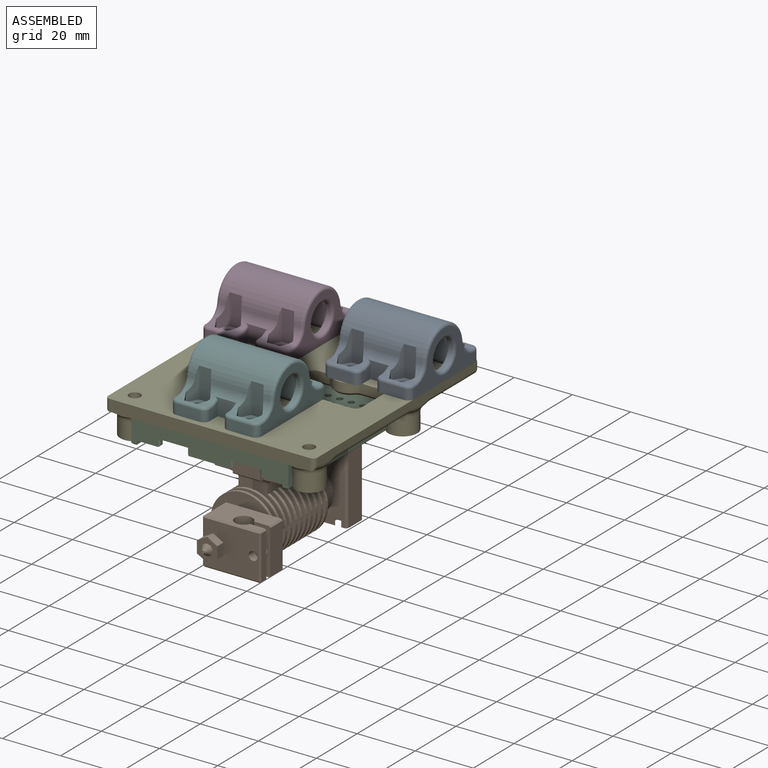
[diagram: assembled view]
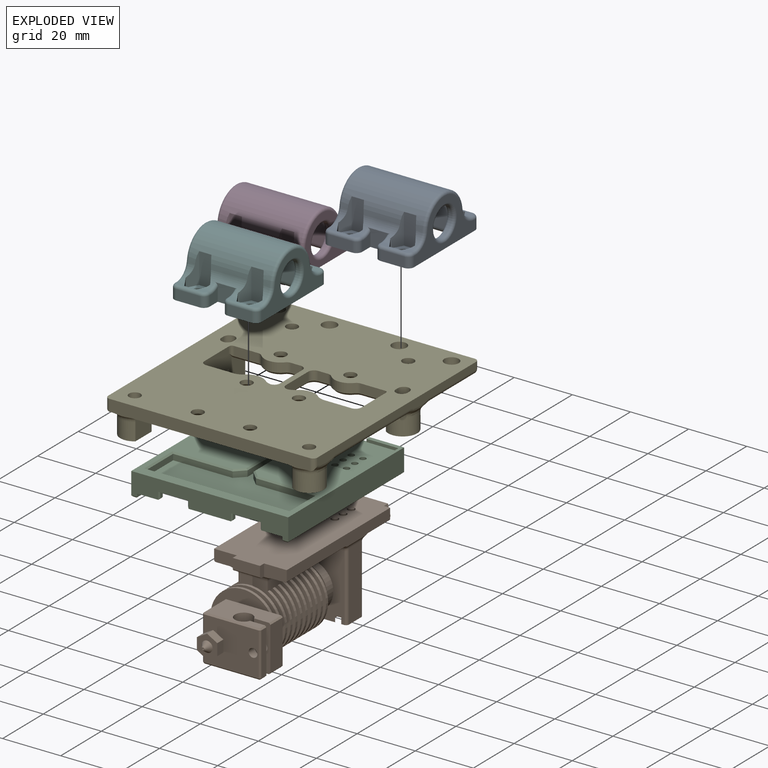
[diagram: exploded view]
GUIDED TOUR — MATED ASSEMBLY WITH SUBASSEMBLIES (Onshape document 94b377ac332a433ed45a9420, AutoMate assembly 94b377ac332a433ed45a9420_afbccce69446bfe2c3d41b74_d0dcf9f462255d9957f37b90_default)

This assembly has 19 component occurrences arranged in 6 top-level units: 5 individual components plus 1 subassembly (S0). The tour has two levels: first the top level, where each subassembly is treated as one rigid unit; then each subassembly is toured internally in its own section (nesting deeper than one subassembly level is flattened into its subassembly's section).

Components are labeled P0..P18 across the whole record; subassembly units are labeled S0..S0. A mate is a constraint between two units; its type names the relative motion it leaves free:
  FASTENED — locks the two components together rigidly (no relative motion),
  REVOLUTE — leaves rotation about the listed axis free (a hinge),
  SLIDER — leaves translation along the listed axis free.
Axis/direction vectors are unit vectors and 'through' points are millimeter coordinates, both in the assembly's world frame.

TOP-LEVEL MATES (between units; each subassembly's internal mates are listed in its own section)
  1. FASTENED "Fastened 1": P14 <-> P15, direction (0.000, 0.000, 1.000) through (84.69, -9.59, 2.87) mm
  2. FASTENED "Fastened 3": P9 <-> P14, direction (0.000, 0.000, -1.000) through (63.69, 35.41, 2.87) mm
  3. FASTENED "Fastened 2": P0 <-> P14, direction (0.000, 0.000, -1.000) through (105.69, 35.41, 2.87) mm
  4. FASTENED "Fastened 4": P7 <-> P14, direction (0.000, 1.000, 0.000) through (48.69, 16.41, -1.13) mm

TOP-LEVEL ASSEMBLY ORDER
  1. P14 — the base component [order verified]
  2. P7 [order verified]
  3. S0 [order verified]
  4. P15 [order verified]
  5. P9 [order verified]
  6. P0 [order verified]
(S0 verified with a relaxed clearance tolerance: the source model stores slight part interference there.)
Order-tag legend:
  [order verified] — this step's position reverses a verified removal order: the component was checked to insert without passing through the ones already placed.

Of the 19 component occurrences, 9 carry the full construction recipe — the FeatureScript program that regenerates the part's solid from scratch; the rest are supplied as boundary geometry only. Each toured unit is shown spotlighted twice — assembled, then exploded with a leader line back to its socket (green = recipe-attached component, orange = geometry-only, blue = subassembly unit; the rest desaturated gray).
NOTE — this tour is split across 2 documents so each fits a 32k-token context. This is document 1: the component sections continue in the remaining 1 document, each repeating the header above.
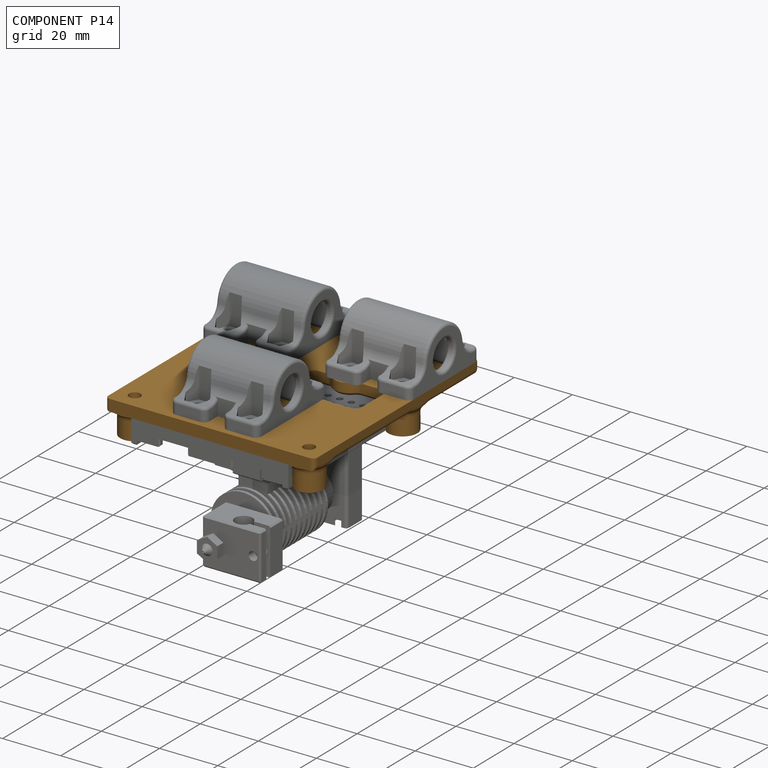
[diagram: component P14 — assembled]
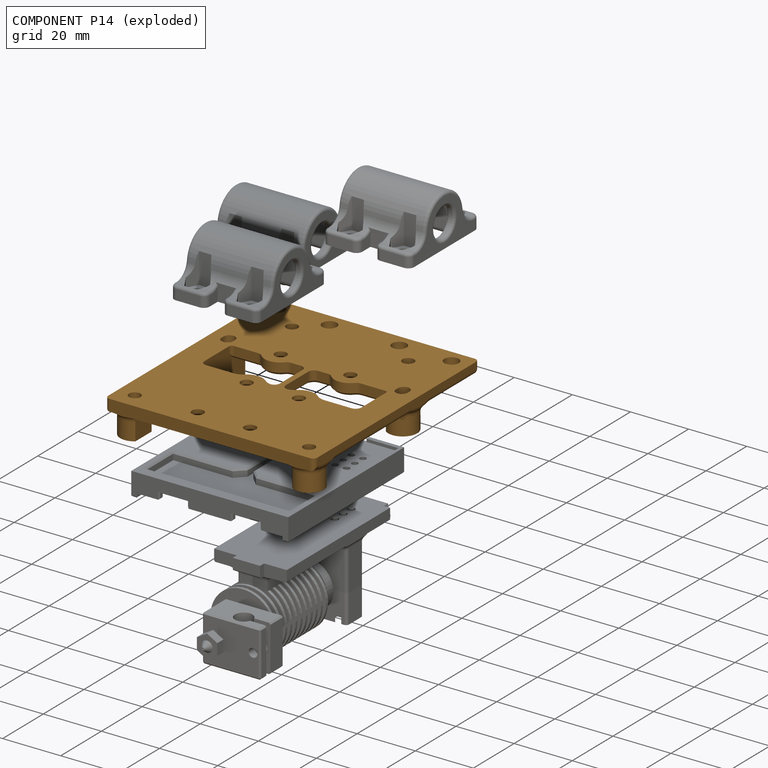
[diagram: component P14 — exploded]
COMPONENT P14 — geometry summary (no construction recipe available for this part):
  bounding box: 84.7 x 76.2 x 12.6 mm
  B-rep topology: 1 solid, 189 faces, 994 edges
  volume: 20835 mm^3 (26% of its bounding box)
  symmetry: mirror-symmetric across its x mid-plane
Held by: FASTENED mate "Fastened 1" to P15; FASTENED mate "Fastened 3" to P9; FASTENED mate "Fastened 2" to P0; FASTENED mate "Fastened 4" to P7.
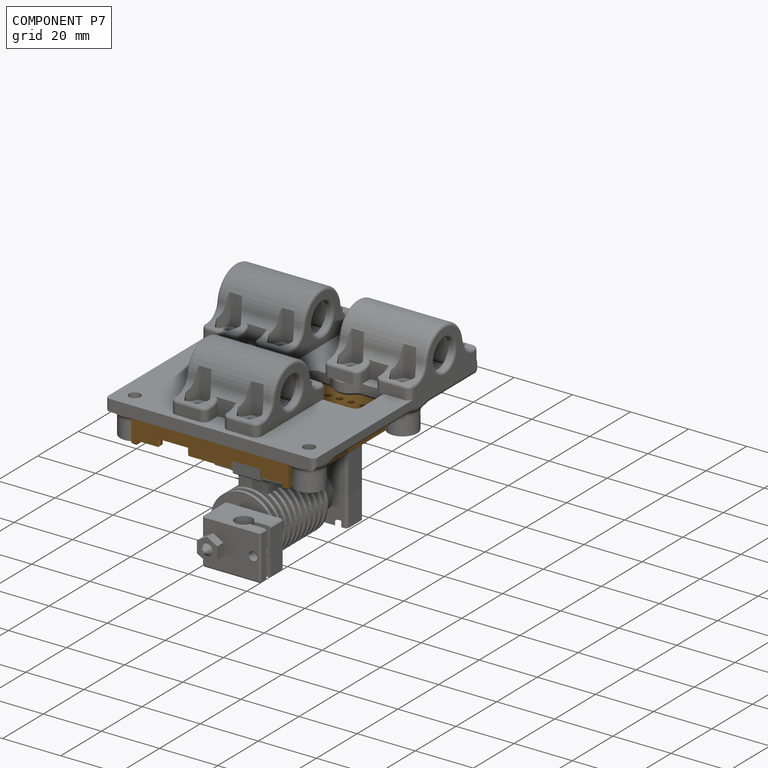
[diagram: component P7 — assembled]
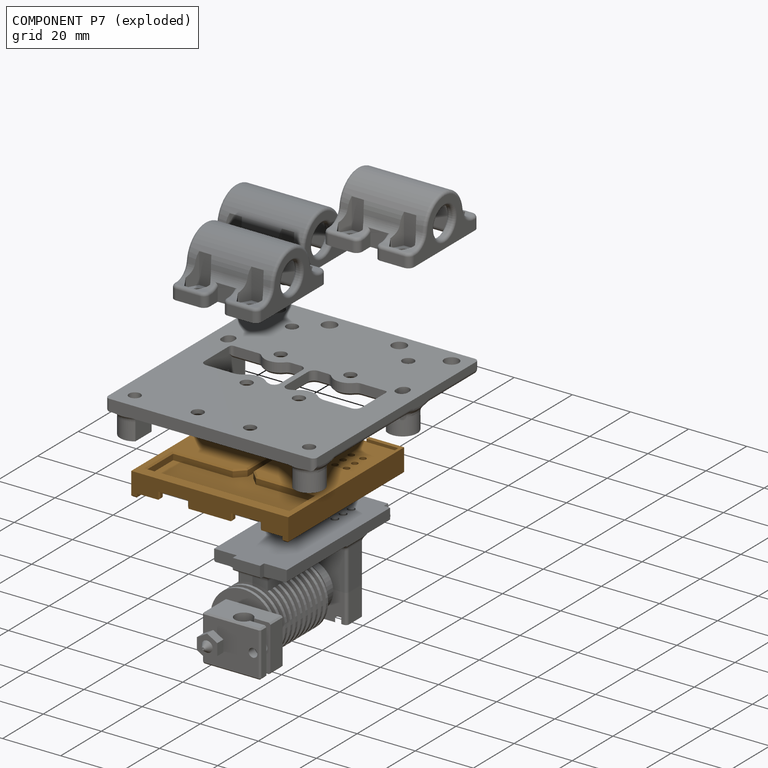
[diagram: component P7 — exploded]
COMPONENT P7 — geometry summary (no construction recipe available for this part):
  bounding box: 57.2 x 54.2 x 8.2 mm
  B-rep topology: 1 solid, 249 faces, 1238 edges
  volume: 8694 mm^3 (34% of its bounding box)
  symmetry: mirror-symmetric across its x mid-plane
Held by: FASTENED mate "Fastened 4" to P14.
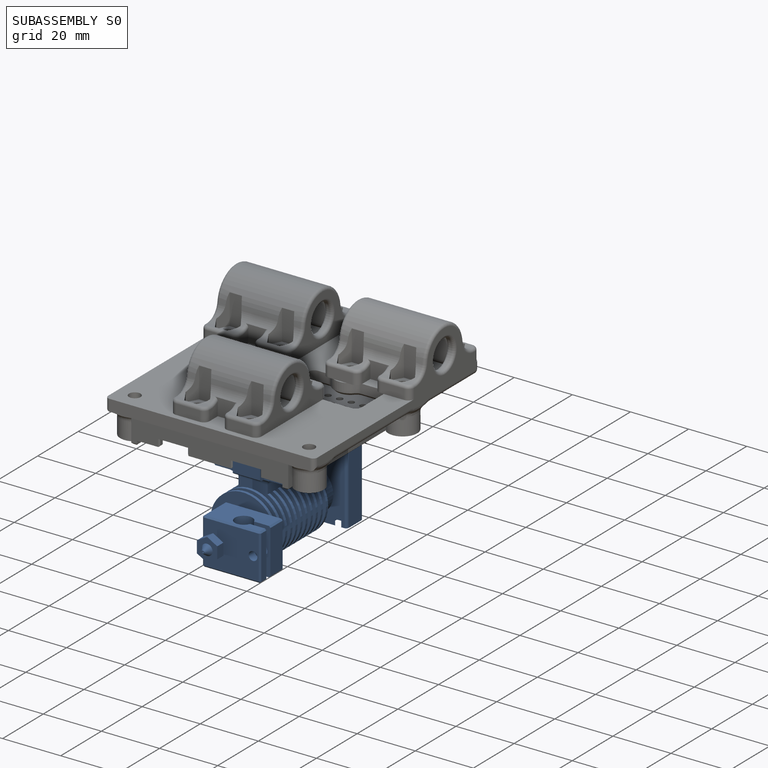
[diagram: subassembly S0 — assembled]
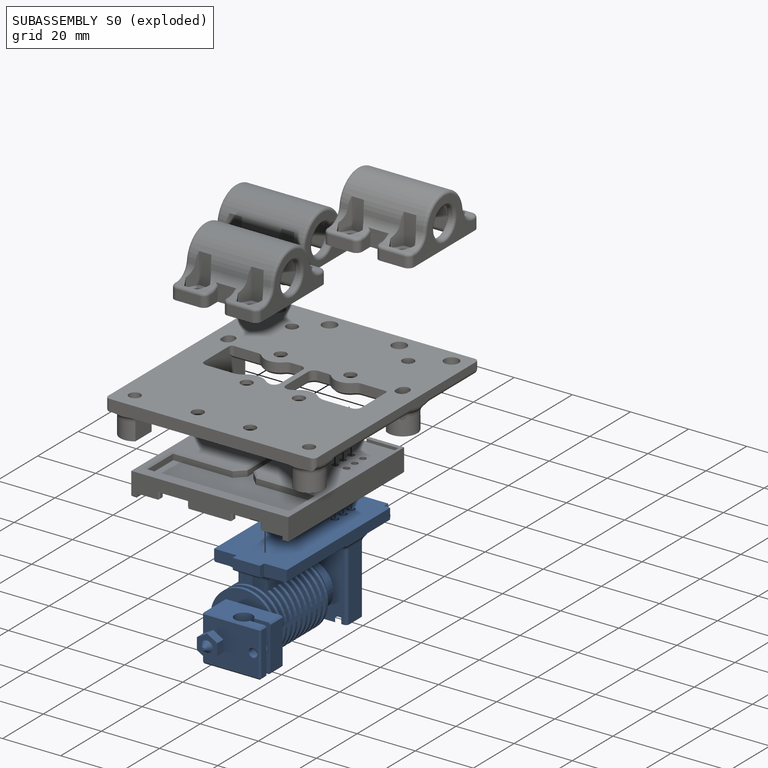
[diagram: subassembly S0 — exploded]
SUBASSEMBLY S0 — 14 components (P1, P2, P3, P4, P5, P6, P8, P10, P11, P12, P13, P16, P17, P18), of which 9 recipe-attached; toured below.
Held by: no mates (free).
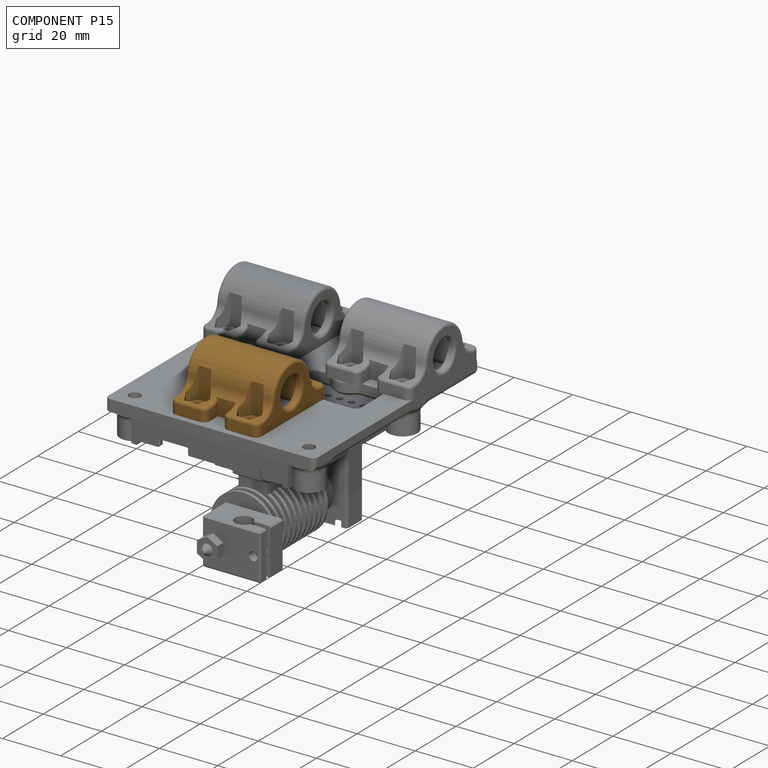
[diagram: component P15 — assembled]
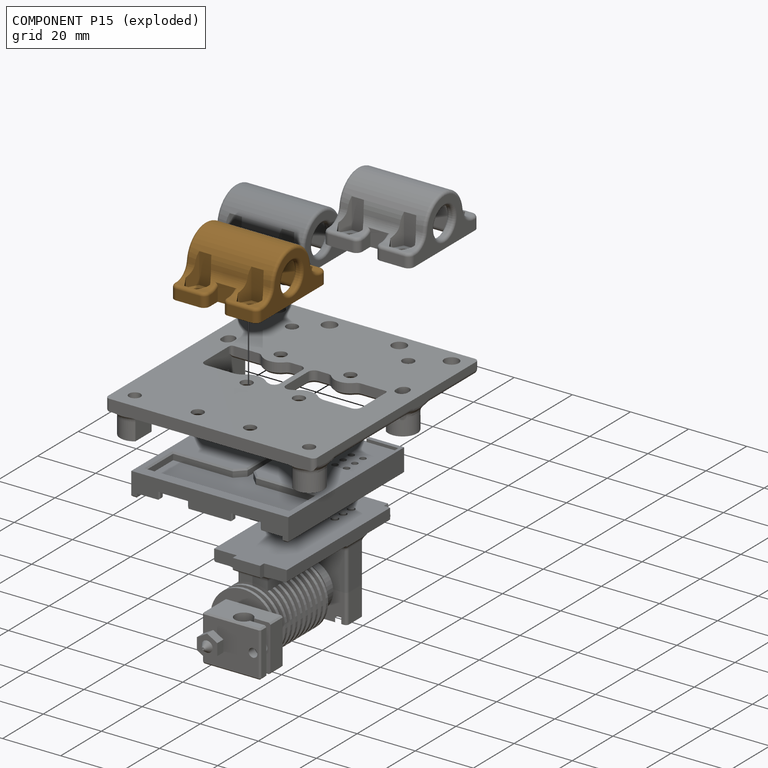
[diagram: component P15 — exploded]
COMPONENT P15 — geometry summary (no construction recipe available for this part):
  bounding box: 34.4 x 30.4 x 18.3 mm
  B-rep topology: 1 solid, 114 faces, 602 edges
  volume: 4185 mm^3 (22% of its bounding box)
  symmetry: 2-fold rotationally symmetric about the z axis; mirror-symmetric across its x mid-plane, y mid-plane
Held by: FASTENED mate "Fastened 1" to P14.
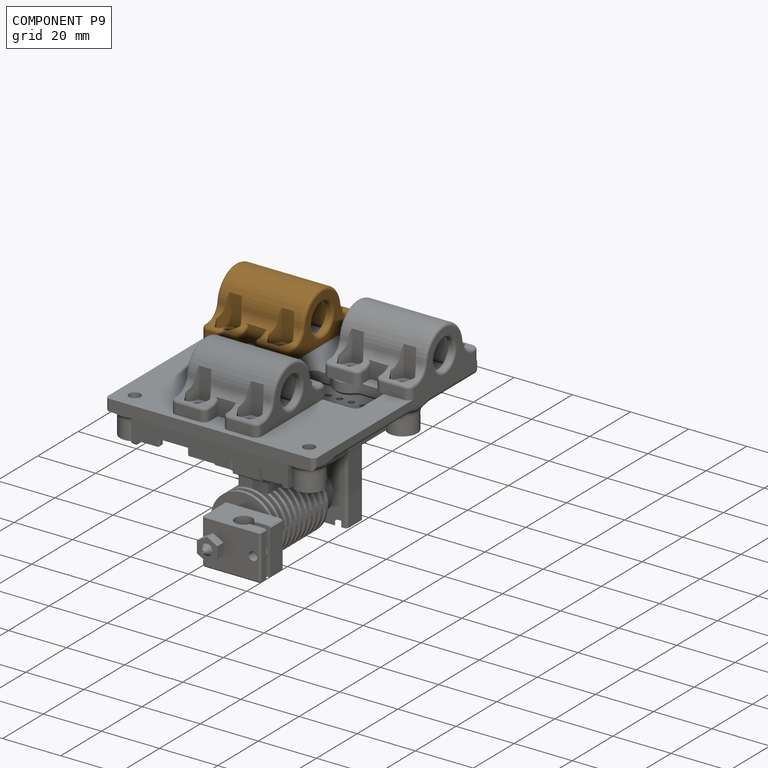
[diagram: component P9 — assembled]
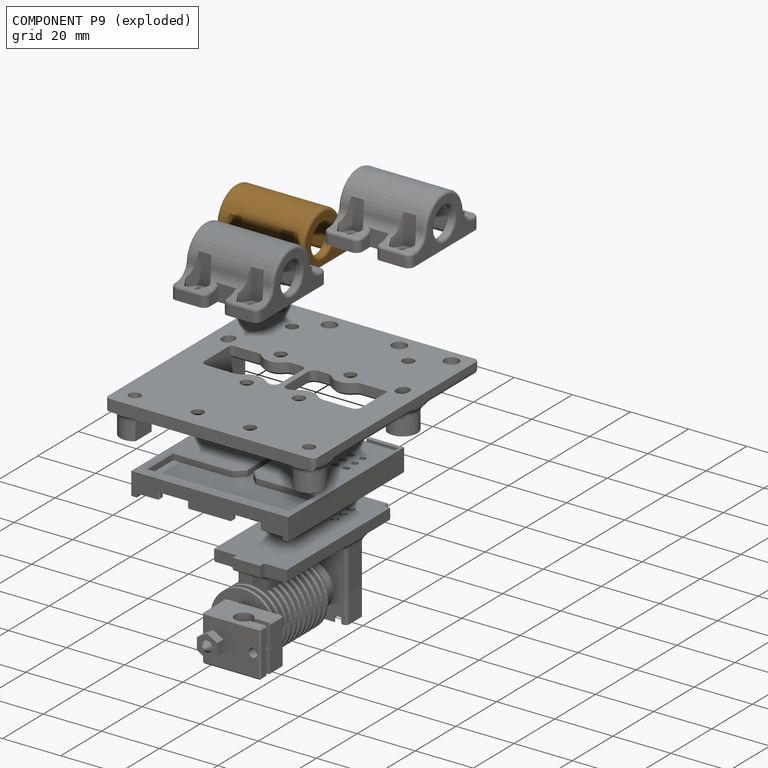
[diagram: component P9 — exploded]
COMPONENT P9 — geometry summary (no construction recipe available for this part):
  bounding box: 34.4 x 30.4 x 18.3 mm
  B-rep topology: 1 solid, 114 faces, 602 edges
  volume: 4185 mm^3 (22% of its bounding box)
  symmetry: 2-fold rotationally symmetric about the z axis; mirror-symmetric across its x mid-plane, y mid-plane
Held by: FASTENED mate "Fastened 3" to P14.
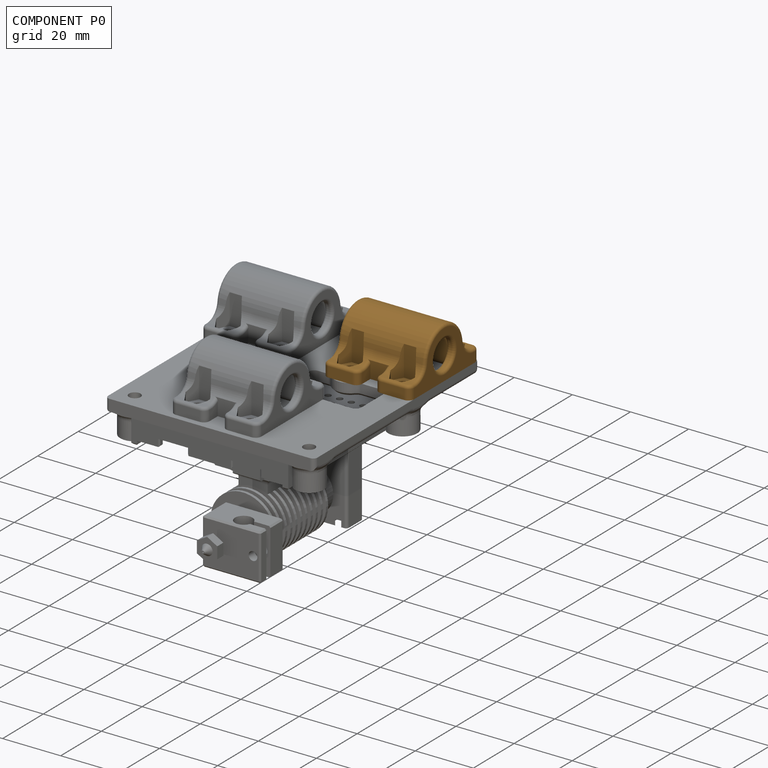
[diagram: component P0 — assembled]
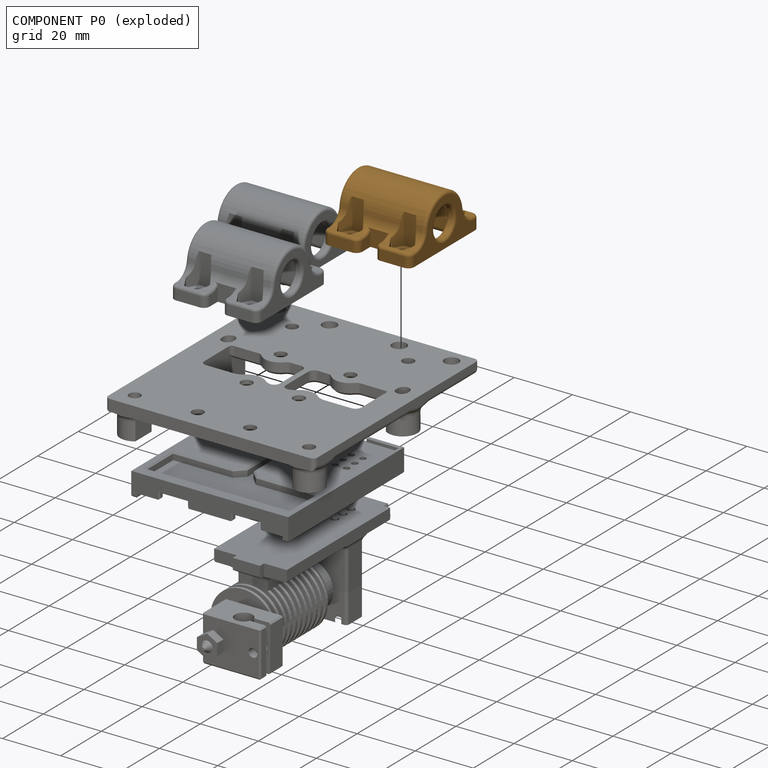
[diagram: component P0 — exploded]
COMPONENT P0 — geometry summary (no construction recipe available for this part):
  bounding box: 34.4 x 30.4 x 18.3 mm
  B-rep topology: 1 solid, 114 faces, 602 edges
  volume: 4185 mm^3 (22% of its bounding box)
  symmetry: 2-fold rotationally symmetric about the z axis; mirror-symmetric across its x mid-plane, y mid-plane
Held by: FASTENED mate "Fastened 2" to P14.
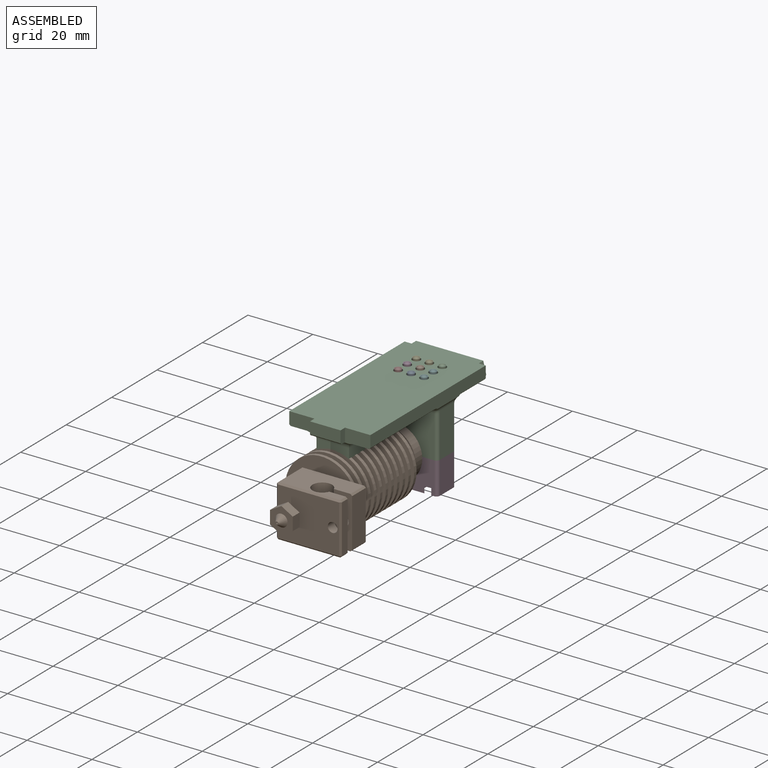
[diagram: subassembly S0 — assembled view]
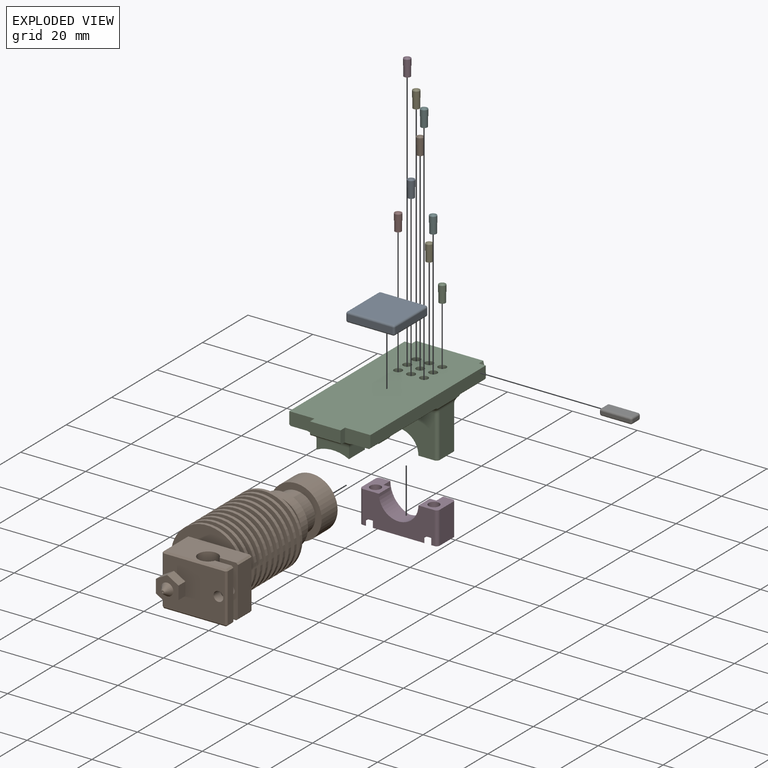
[diagram: subassembly S0 — exploded view]
SUBASSEMBLY S0 TOUR — 14 components, shown here in isolation at its own camera.

INTERNAL MATES
  1. FASTENED "Fastened 3": P10 <-> P13, direction (0.000, 0.000, -1.000) through (84.29, -2.79, -6.63) mm
  2. FASTENED "Fastened 3": P4 <-> P13, direction (0.000, 0.000, -1.000) through (84.29, 1.21, -6.63) mm
  3. REVOLUTE "Revolute 1": P13 <-> P2, axis (0.000, 1.000, 0.000) through (88.29, -3.29, -24.13) mm
  4. FASTENED "Fastened 3": P6 <-> P13, direction (0.000, 0.000, -1.000) through (92.29, 1.21, -6.63) mm
  5. FASTENED "Fastened 3": P11 <-> P13, direction (0.000, 0.000, -1.000) through (88.29, -2.79, -6.63) mm
  6. FASTENED "Fastened 3": P17 <-> P13, direction (0.000, 0.000, -1.000) through (84.29, 5.21, -6.63) mm
  7. FASTENED "Fastened 1": P1 <-> P13, direction (0.000, 0.000, 1.000) through (88.29, -13.47, -5.33) mm
  8. FASTENED "Fastened 3": P5 <-> P13, direction (0.000, 0.000, -1.000) through (88.29, 5.21, -6.63) mm
  9. FASTENED "Fastened 3": P3 <-> P13, direction (0.000, 0.000, -1.000) through (92.29, 5.21, -6.63) mm
  10. SLIDER "Slider 1": P13 <-> P16, axis (0.000, 0.000, -1.000) through (79.29, -5.59, -24.13) mm
  11. FASTENED "Fastened 2": P8 <-> P13, direction (0.000, 0.000, 1.000) through (88.29, 9.88, -5.33) mm
  12. FASTENED "Fastened 3": P18 <-> P13, direction (0.000, 0.000, -1.000) through (92.29, -2.79, -6.63) mm
  13. FASTENED "Fastened 3": P12 <-> P13, direction (0.000, 0.000, -1.000) through (88.29, 1.21, -6.63) mm
  14. FASTENED "Fastened 3": P17 <-> P13, direction (0.000, 0.000, -1.000) through (84.29, 5.21, -6.63) mm
  15. FASTENED "Fastened 1": P1 <-> P13, direction (0.000, 0.000, 1.000) through (88.29, -13.47, -5.33) mm
  16. FASTENED "Fastened 3": P5 <-> P13, direction (0.000, 0.000, -1.000) through (88.29, 5.21, -6.63) mm
  17. FASTENED "Fastened 3": P18 <-> P13, direction (0.000, 0.000, -1.000) through (92.29, -2.79, -6.63) mm
  18. REVOLUTE "Revolute 1": P13 <-> P2, axis (0.000, 1.000, 0.000) through (88.29, -3.29, -24.13) mm
  19. FASTENED "Fastened 3": P6 <-> P13, direction (0.000, 0.000, -1.000) through (92.29, 1.21, -6.63) mm
  20. FASTENED "Fastened 3": P11 <-> P13, direction (0.000, 0.000, -1.000) through (88.29, -2.79, -6.63) mm
  21. FASTENED "Fastened 3": P10 <-> P13, direction (0.000, 0.000, -1.000) through (84.29, -2.79, -6.63) mm
  22. FASTENED "Fastened 3": P4 <-> P13, direction (0.000, 0.000, -1.000) through (84.29, 1.21, -6.63) mm
  23. FASTENED "Fastened 3": P12 <-> P13, direction (0.000, 0.000, -1.000) through (88.29, 1.21, -6.63) mm
  24. FASTENED "Fastened 3": P3 <-> P13, direction (0.000, 0.000, -1.000) through (92.29, 5.21, -6.63) mm
  25. SLIDER "Slider 1": P13 <-> P16, axis (0.000, 0.000, -1.000) through (79.29, -5.59, -24.13) mm
  26. FASTENED "Fastened 2": P8 <-> P13, direction (0.000, 0.000, 1.000) through (88.29, 9.88, -5.33) mm

ASSEMBLY ORDER (within the subassembly)
  1. P13 — the base component [order heuristic]
  2. P1 — core [order heuristic]
  3. P2 — core [order heuristic]
  4. P3 — core [order heuristic]
  5. P4 — core [order heuristic]
  6. P5 — core [order heuristic]
  7. P6 — core [order heuristic]
  8. P10 — core [order heuristic]
  9. P11 — core [order heuristic]
  10. P12 — core [order heuristic]
  11. P16 — core [order heuristic]
  12. P17 — core [order heuristic]
  13. P18 — core [order heuristic]
  14. P8 [order verified]
Order-tag legend:
  [order verified] — this step's position reverses a verified removal order: the component was checked to insert without passing through the ones already placed.
  [order heuristic] — the first 13 components form the assembly's core: parts whose collision-free extraction could not be verified, listed in mate-graph order.
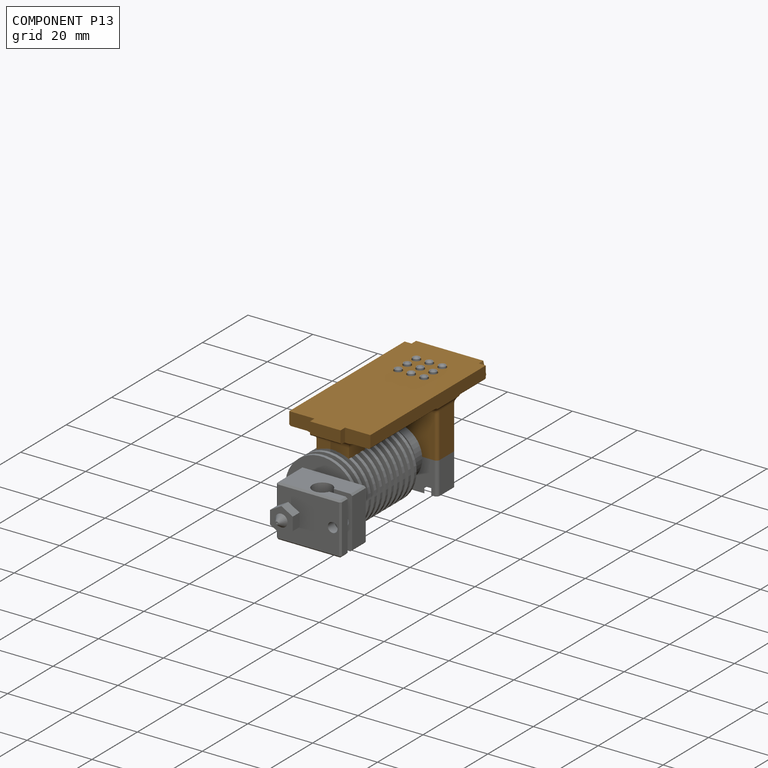
[diagram: component P13 — assembled]
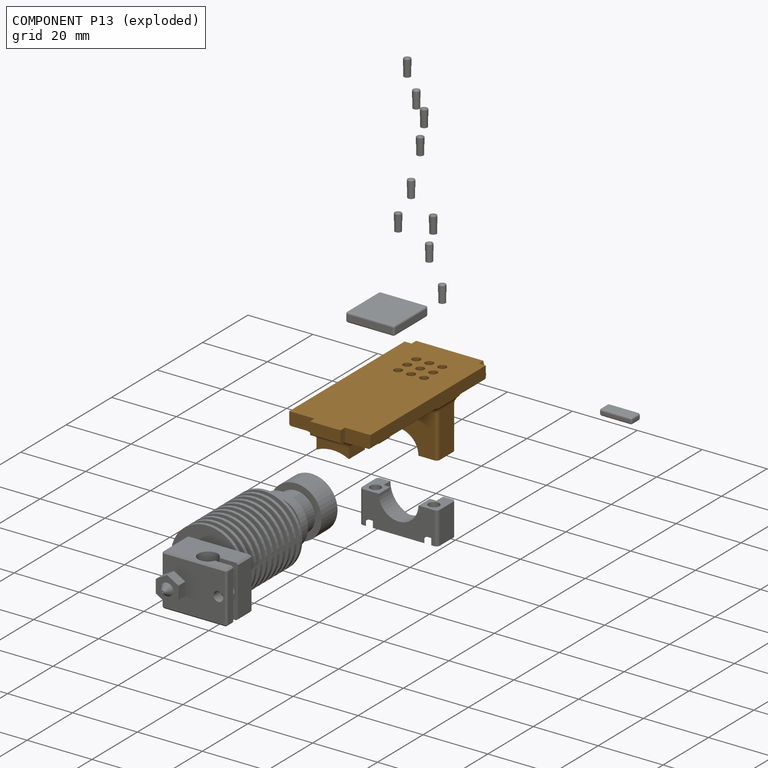
[diagram: component P13 — exploded]
COMPONENT P13 — geometry summary (no construction recipe available for this part):
  bounding box: 54.8 x 25.5 x 19.0 mm
  B-rep topology: 1 solid, 131 faces, 664 edges
  volume: 6064 mm^3 (23% of its bounding box)
  symmetry: mirror-symmetric across its x mid-plane
Held by: FASTENED mate "Fastened 3" to P10; FASTENED mate "Fastened 3" to P4; REVOLUTE mate "Revolute 1" to P2; FASTENED mate "Fastened 3" to P6; FASTENED mate "Fastened 3" to P11; FASTENED mate "Fastened 3" to P17; FASTENED mate "Fastened 1" to P1; FASTENED mate "Fastened 3" to P5; FASTENED mate "Fastened 3" to P3; SLIDER mate "Slider 1" to P16; FASTENED mate "Fastened 2" to P8; FASTENED mate "Fastened 3" to P18; FASTENED mate "Fastened 3" to P12; FASTENED mate "Fastened 3" to P17; FASTENED mate "Fastened 1" to P1; FASTENED mate "Fastened 3" to P5; FASTENED mate "Fastened 3" to P18; REVOLUTE mate "Revolute 1" to P2; FASTENED mate "Fastened 3" to P6; FASTENED mate "Fastened 3" to P11; FASTENED mate "Fastened 3" to P10; FASTENED mate "Fastened 3" to P4; FASTENED mate "Fastened 3" to P12; FASTENED mate "Fastened 3" to P3; SLIDER mate "Slider 1" to P16; FASTENED mate "Fastened 2" to P8.
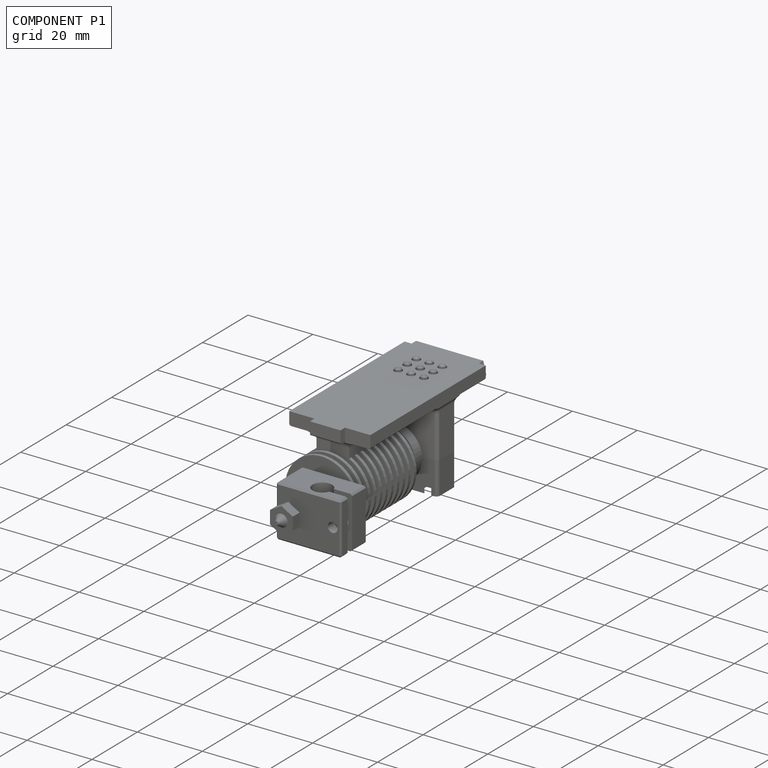
[diagram: component P1 — assembled]
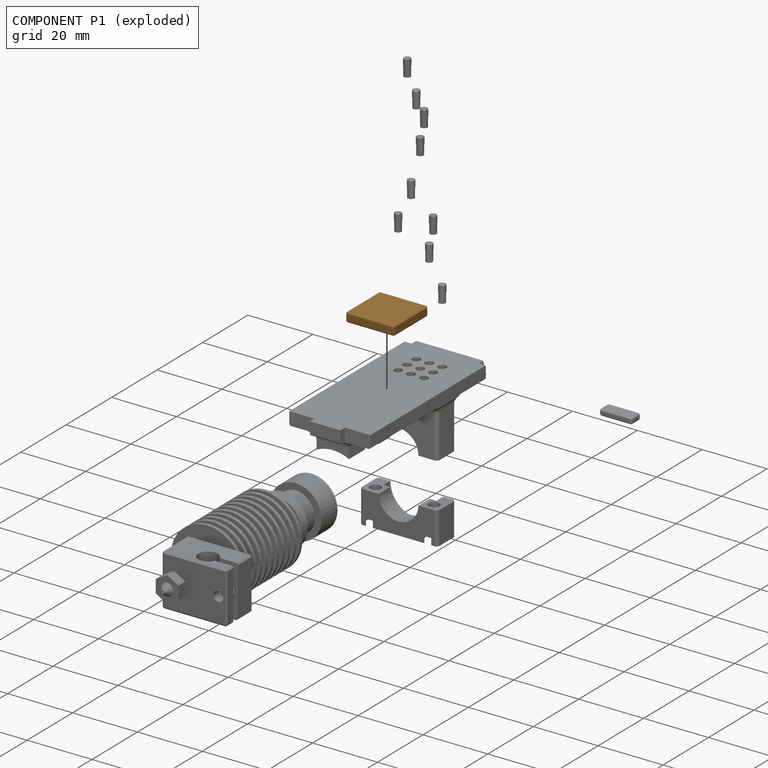
[diagram: component P1 — exploded]
COMPONENT P1 — geometry summary (no construction recipe available for this part):
  bounding box: 15.0 x 15.0 x 3.0 mm
  B-rep topology: 1 solid, 26 faces, 104 edges
  volume: 665 mm^3 (99% of its bounding box)
  symmetry: 2-fold rotationally symmetric about the x axis; 2-fold rotationally symmetric about the y axis; 4-fold rotationally symmetric about the z axis; mirror-symmetric across its x mid-plane, y mid-plane, z mid-plane
Held by: FASTENED mate "Fastened 1" to P13; FASTENED mate "Fastened 1" to P13.
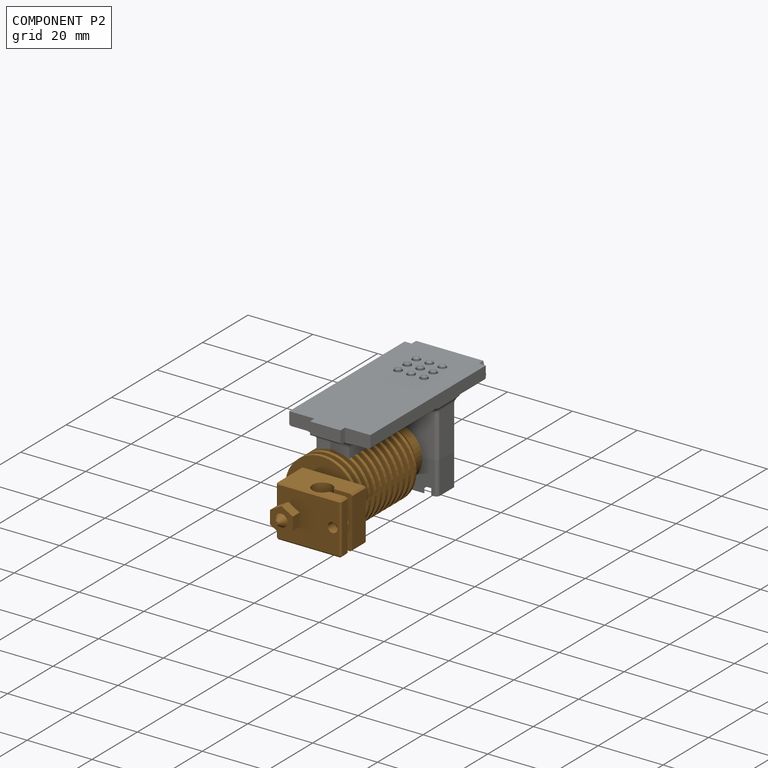
[diagram: component P2 — assembled]
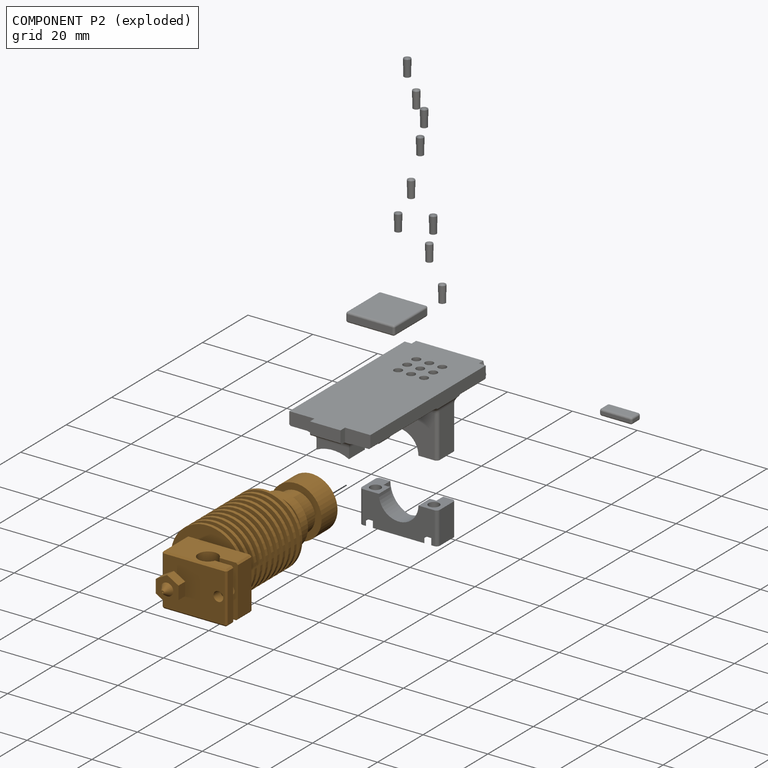
[diagram: component P2 — exploded]
COMPONENT P2 — geometry summary (no construction recipe available for this part):
  bounding box: 65.6 x 26.7 x 22.3 mm
  B-rep topology: 1 solid, 111 faces, 390 edges
  volume: 11414 mm^3 (29% of its bounding box)
Held by: REVOLUTE mate "Revolute 1" to P13; REVOLUTE mate "Revolute 1" to P13.
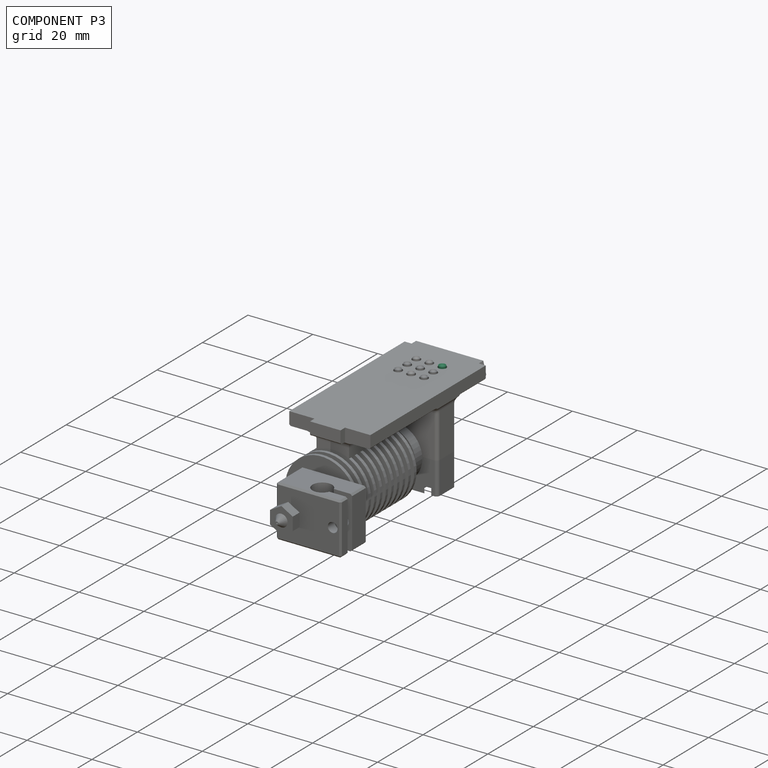
[diagram: component P3 — assembled]
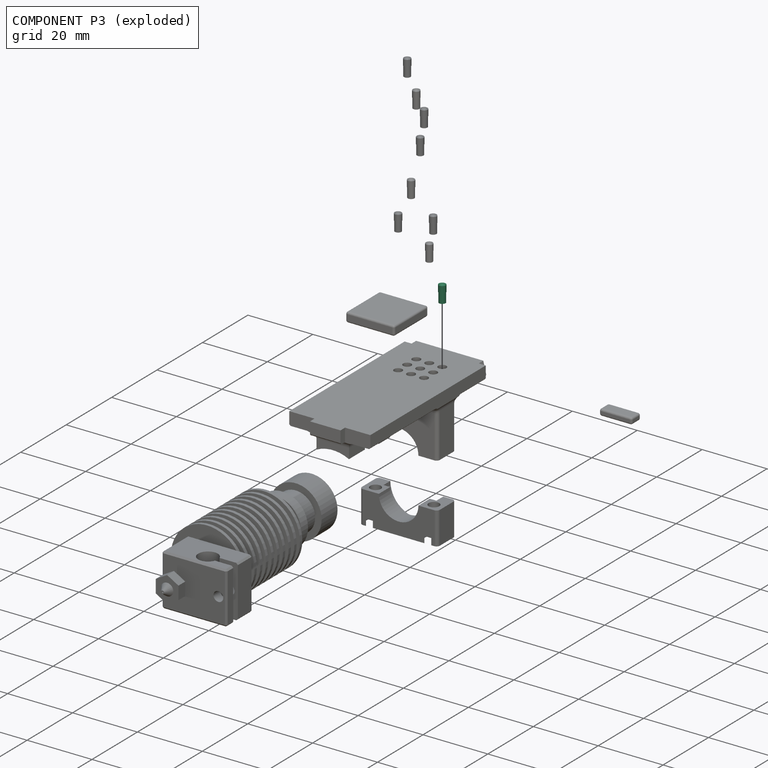
[diagram: component P3 — exploded]
COMPONENT P3 — recipe-attached (CADFS 00180591, mesh-verified: the recipe's output STEP matches this component's geometry to below the mesh-comparison resolution (tessellation chordal tolerance ~0.00877 mm)).
Held by: FASTENED mate "Fastened 3" to P13; FASTENED mate "Fastened 3" to P13.
Construction recipe (FeatureScript — the CAD program that rebuilds this solid; sketch coordinates are in the units given by the * unit suffixes, e.g. mm):

FeatureScript 2599;
import(path : "onshape/std/geometry.fs", version : "2599.0");
import(path : "onshape/std/common.fs", version : "2599.0");
const mm = millimeter;
const VERTEX = EntityType.VERTEX;
const EDGE = EntityType.EDGE;
const FACE = EntityType.FACE;
const BODY = EntityType.BODY;
function v(x, y){return vector(x, y);}
function OD(order){return orderDisambiguation(order);}
function OSD(set){return originalSetDisambiguation(set);}
function TD(topology){return topologyDisambiguation(topology);}
function TDD(query){return trueDependencyDisambiguation(query);}
function sQuery(a, b, c) {return sketchEntityQuery(a, b, c);}

annotation { "Feature Type Name" : "Feature", "Feature Type Description" : "" }
export const myFeature = defineFeature(function(context is Context, id is Id, definition is map)
    precondition{}
    {
        {
            var Q0;
            Q0=qCreatedBy(makeId("Top.planeOp"),FACE);
            var sketch = newSketch(context, id + "F0", { "sketchPlane" : qUnion([Q0])});
            skCircle(sketch, "E0", {"center": v(0, 0) * mm, "radius": 1.07 * mm});
            skSolve(sketch);
        }
        {
            var Q0;
            Q0 = qSketchRegion(id + "F0", true);
            extrude(context, id + "F1", {"entities" : qUnion([Q0]), "depth" : 2 * mm});
        }
        {
            var Q0;
            Q0=makeQuery(id+"F1.opExtrude","CAP_FACE",FACE,{"disambiguationData":[OSD([sQuery(id+"F0.wireOp",EDGE,"E0")])],"isStart":true});
            var sketch = newSketch(context, id + "F2", { "sketchPlane" : qUnion([Q0])});
            skCircle(sketch, "E1", {"center": v(0, 0) * mm, "radius": 0.99 * mm});
            skSolve(sketch);
        }
        {
            var Q0;
            Q0 = qSketchRegion(id + "F2", true);
            extrude(context, id + "F3", {"entities" : qUnion([Q0]), "operationType" : NewBodyOperationType.ADD, "depth" : 3 * mm});
        }
        {
            var Q0;
            Q0=qCreatedBy(makeId("Right.planeOp"),FACE);
            var sketch = newSketch(context, id + "F4", { "sketchPlane" : qUnion([Q0])});
            skLineSegment(sketch, "E2", {"start": v(0, 0) * mm, "end": v(0, 2.4) * mm, "construction": true});
            skArc(sketch, "E3", {"start": v(0, 3.4) * mm, "mid": v(-1, 2.4) * mm, "end": v(0, 1.4) * mm});
            skLineSegment(sketch, "E4", {"start": v(0, 3.4) * mm, "end": v(0, 1.4) * mm});
            skSolve(sketch);
        }
        {
            var Q0;
            Q0=makeQuery(id+"F4.imprint","IMPRINT",FACE,{"disambiguationData":[TD([[makeQuery(id+"F4.imprint","IMPRINT",EDGE,{"derivedFrom":sQuery(id+"F4.wireOp",EDGE,"E3")}),1.0]])]});
            var Q1;
            Q1=sQuery(id+"F4.wireOp",EDGE,"E2");
            revolve(context, id + "F5", {"operationType" : NewBodyOperationType.REMOVE, "entities" : qUnion([Q0]), "axis" : qUnion([Q1]), "revolveType" : RevolveType.FULL, "oppositeDirection" : true});
        }
    });
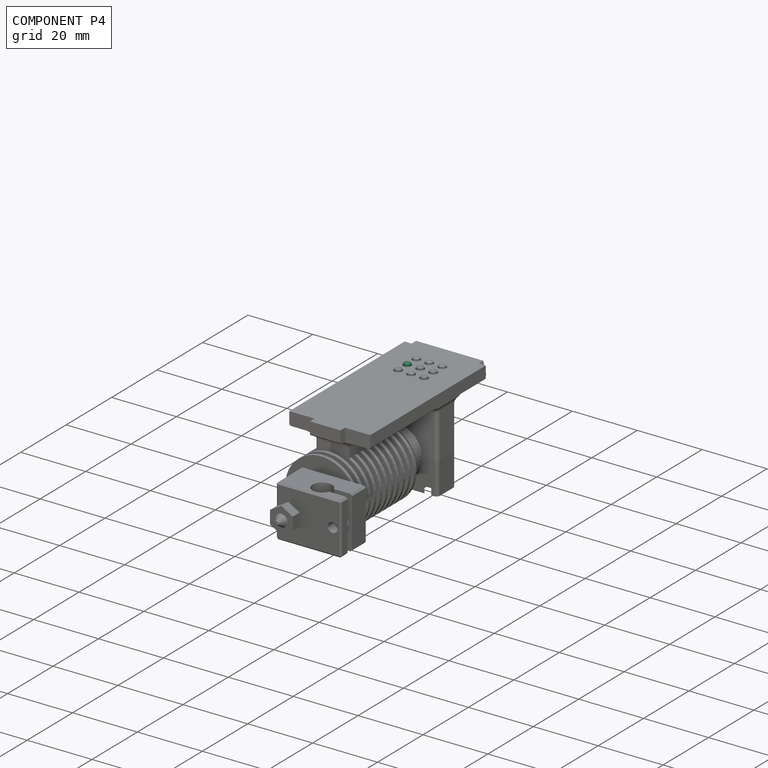
[diagram: component P4 — assembled]
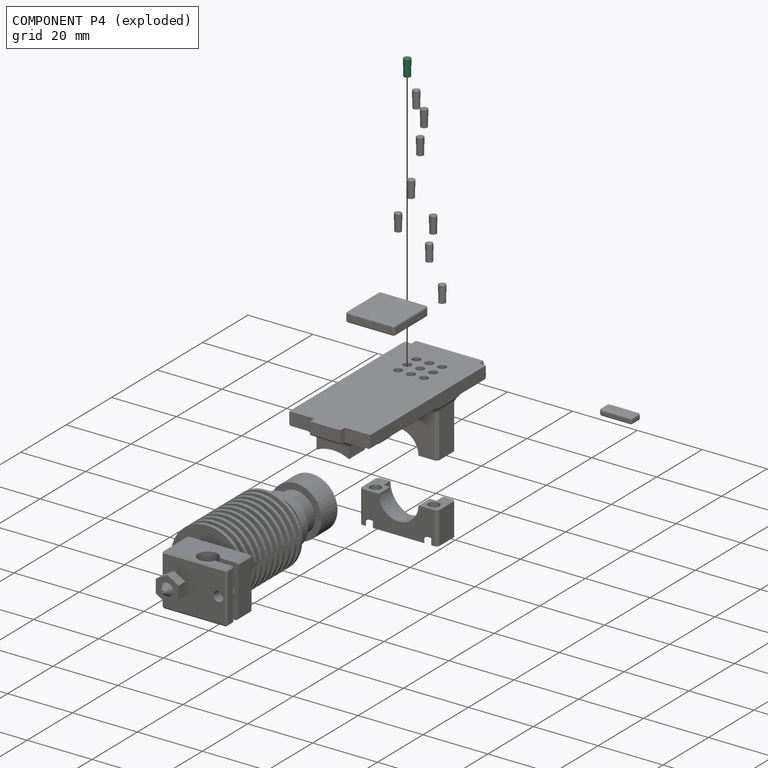
[diagram: component P4 — exploded]
COMPONENT P4 — same part as P3 (CADFS 00180591); its construction recipe is shown at P3.
Held by: FASTENED mate "Fastened 3" to P13; FASTENED mate "Fastened 3" to P13.
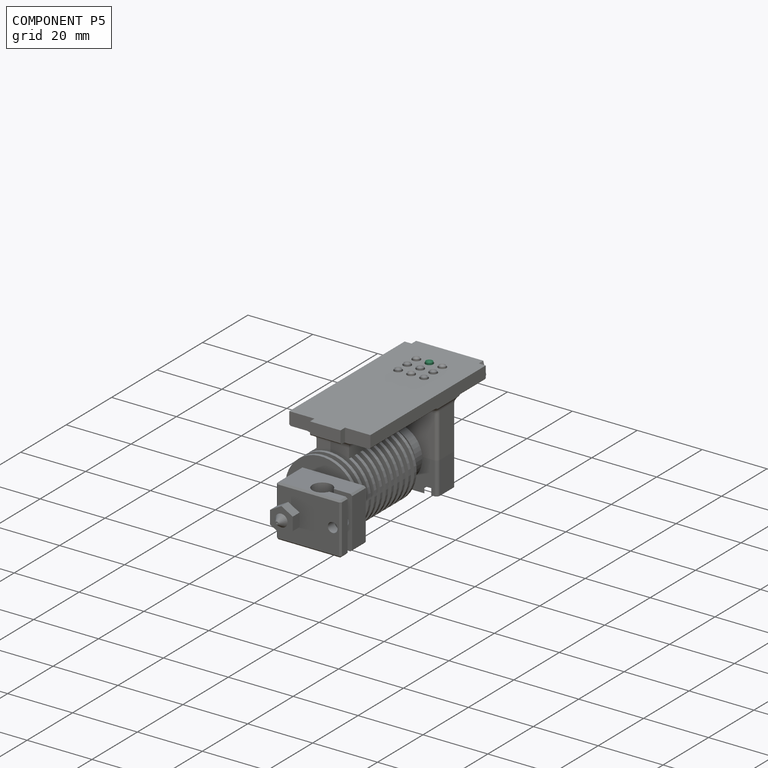
[diagram: component P5 — assembled]
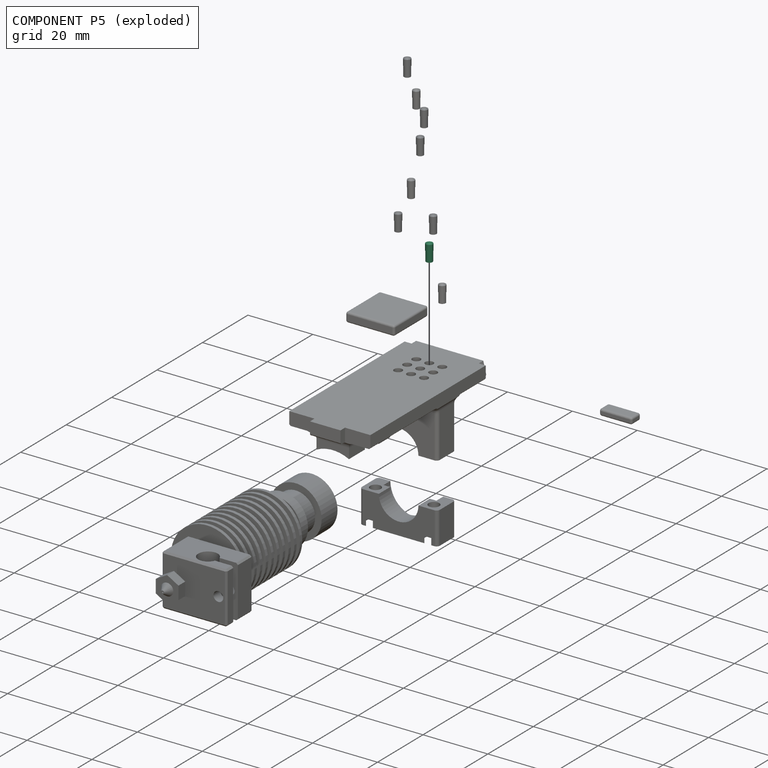
[diagram: component P5 — exploded]
COMPONENT P5 — same part as P3 (CADFS 00180591); its construction recipe is shown at P3.
Held by: FASTENED mate "Fastened 3" to P13; FASTENED mate "Fastened 3" to P13.
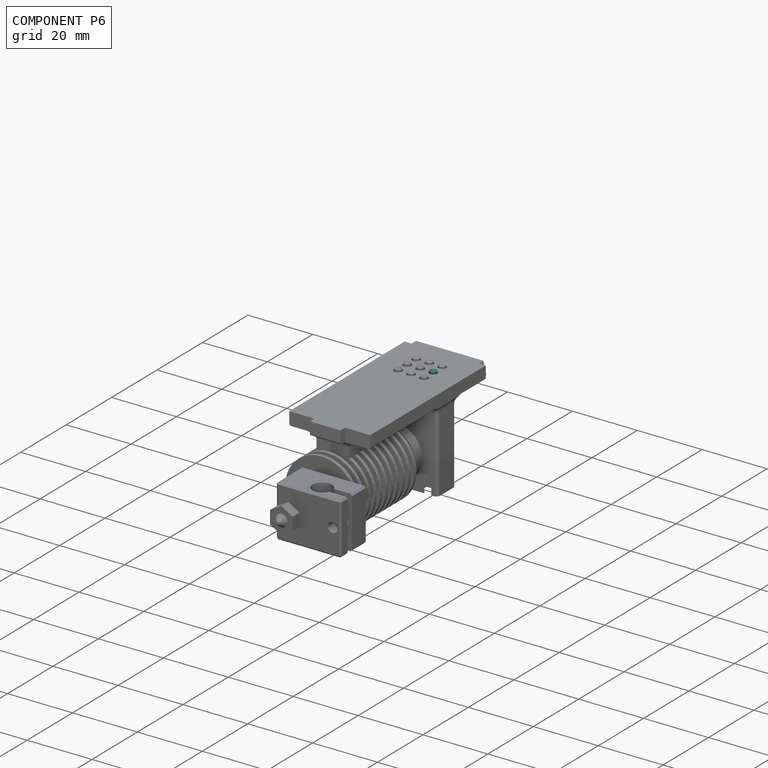
[diagram: component P6 — assembled]
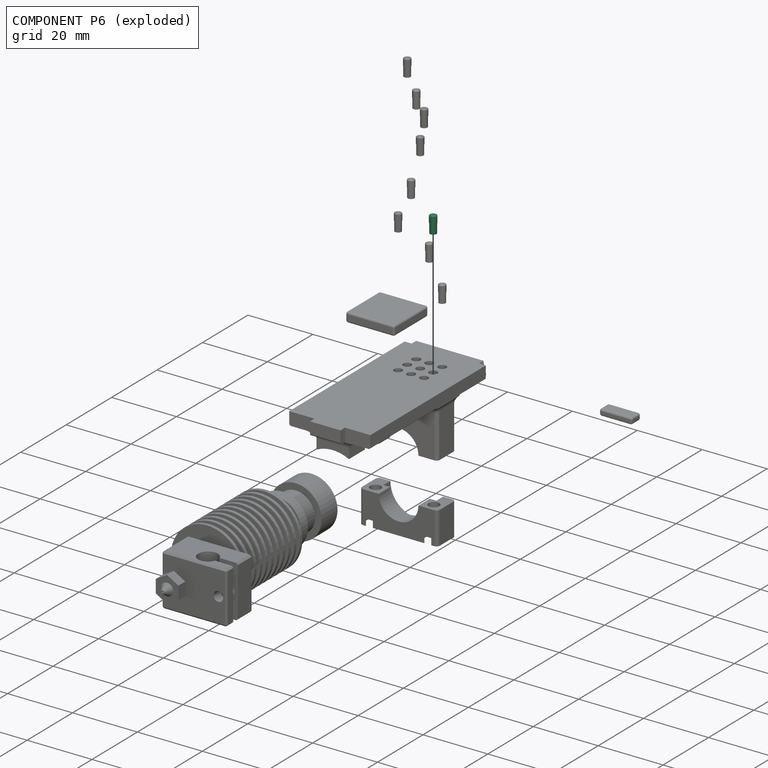
[diagram: component P6 — exploded]
COMPONENT P6 — same part as P3 (CADFS 00180591); its construction recipe is shown at P3.
Held by: FASTENED mate "Fastened 3" to P13; FASTENED mate "Fastened 3" to P13.
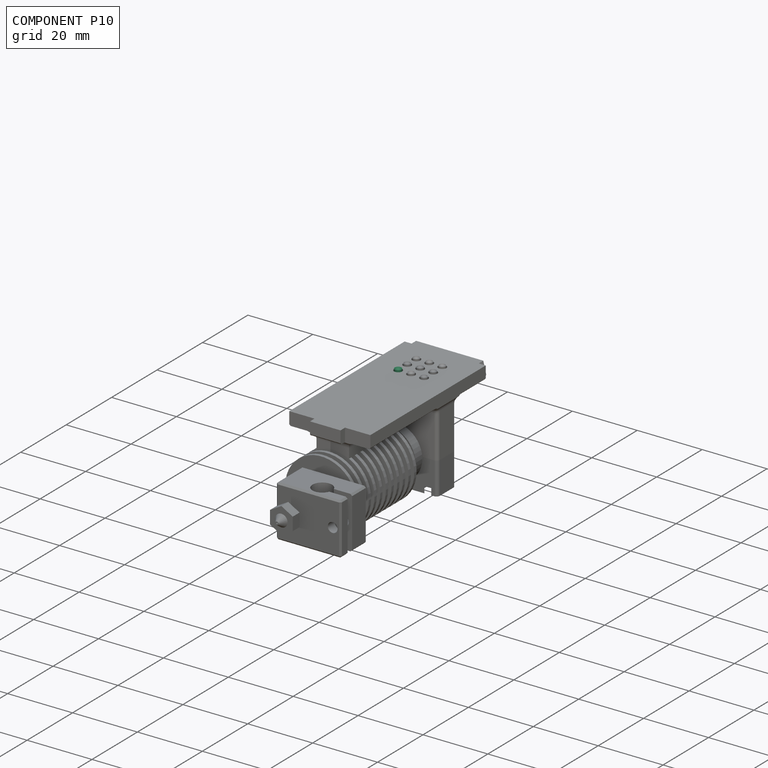
[diagram: component P10 — assembled]
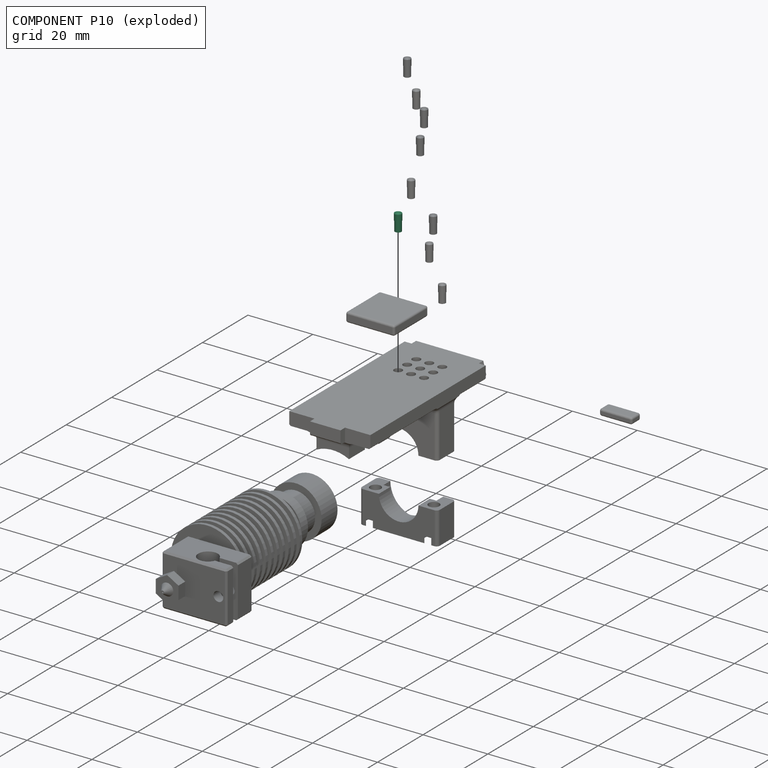
[diagram: component P10 — exploded]
COMPONENT P10 — same part as P3 (CADFS 00180591); its construction recipe is shown at P3.
Held by: FASTENED mate "Fastened 3" to P13; FASTENED mate "Fastened 3" to P13.
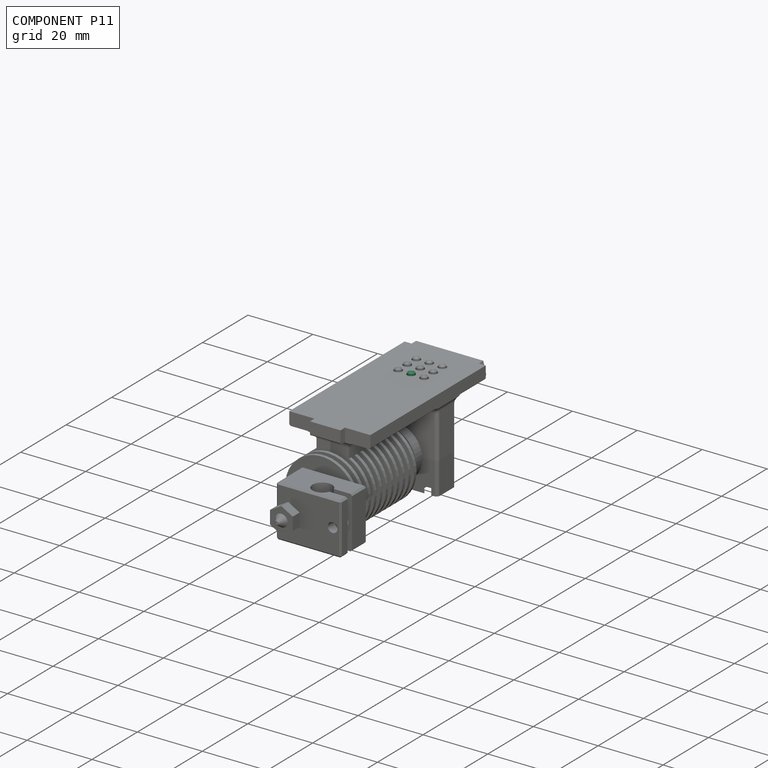
[diagram: component P11 — assembled]
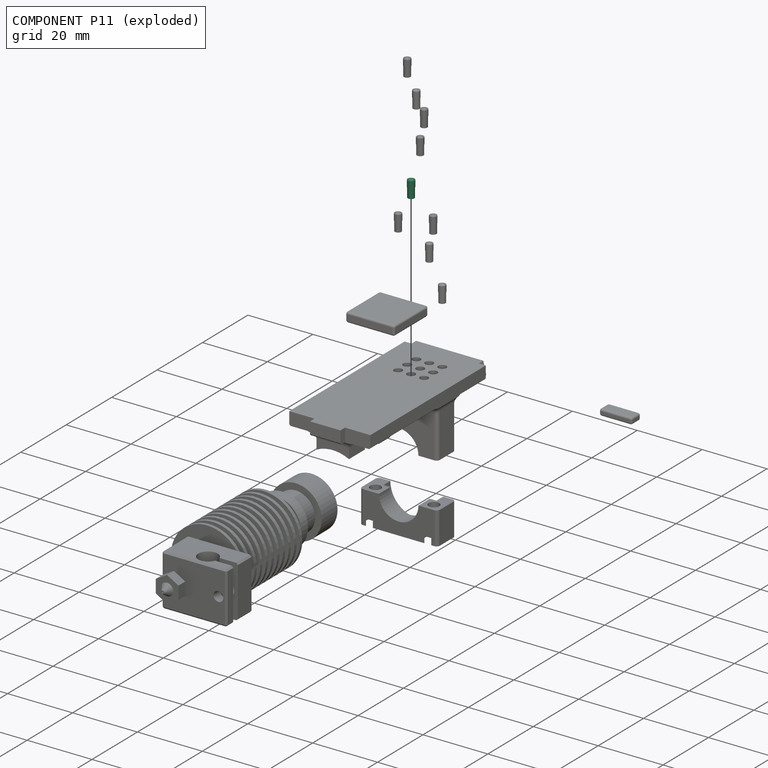
[diagram: component P11 — exploded]
COMPONENT P11 — same part as P3 (CADFS 00180591); its construction recipe is shown at P3.
Held by: FASTENED mate "Fastened 3" to P13; FASTENED mate "Fastened 3" to P13.
